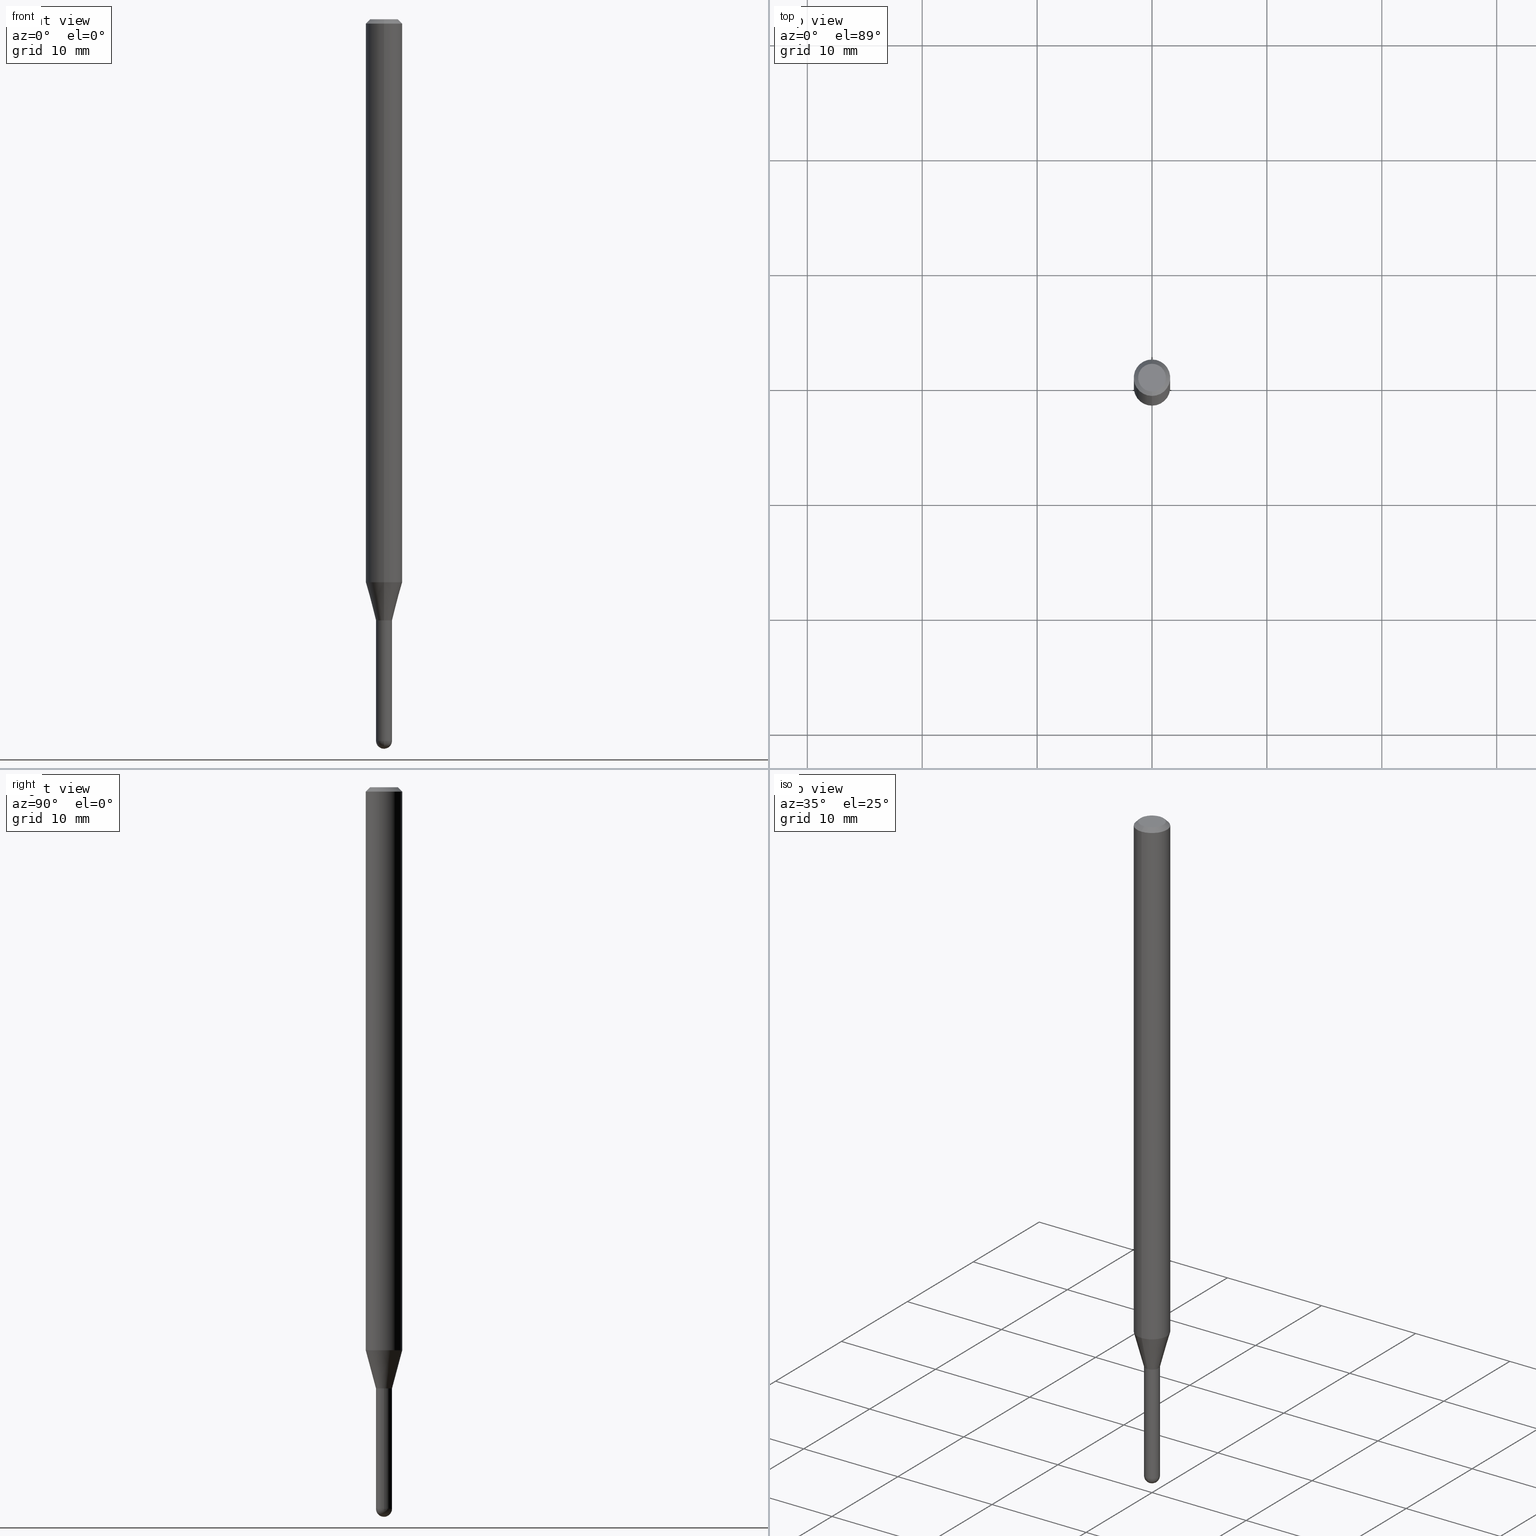
[diagram: canonical four-view strip — front | top / right | iso, engineering-drawing reading convention]
A machine part, canonical four-view strip (front | top / right | iso — engineering-drawing reading convention). The complete STEP part file that produces these views, byte-faithful:
ISO-10303-21;
HEADER;
FILE_DESCRIPTION (( 'STEP AP203' ),
    '1' );
FILE_NAME ('01538.STEP',
    '2024-03-07T19:37:36',
    ( '' ),
    ( '' ),
    'SwSTEP 2.0',
    'SolidWorks 2023',
    '' );
FILE_SCHEMA (( 'CONFIG_CONTROL_DESIGN' ));
ENDSEC;

DATA;
#1 = DIRECTION ( 'NONE',  ( -2.445457103693514043E-29, 3.491498097477213736E-15, 1.000000000000000000 ) ) ;
#2 = ORIENTED_EDGE ( 'NONE', *, *, #450, .F. ) ;
#3 = AXIS2_PLACEMENT_3D ( 'NONE', #75, #376, #194 ) ;
#4 = AXIS2_PLACEMENT_3D ( 'NONE', #282, #13, #350 ) ;
#5 = DIRECTION ( 'NONE',  ( -1.000000000000000000, 7.105427357601001070E-15, -4.926315508542082329E-29 ) ) ;
#6 = DIRECTION ( 'NONE',  ( -1.000000000000000000, 6.982962677686265922E-15, -4.883557194083112901E-29 ) ) ;
#7 = VERTEX_POINT ( 'NONE', #159 ) ;
#8 = CARTESIAN_POINT ( 'NONE',  ( 5.037641633608639187E-29, -7.192486080803059776E-15, -2.060000000000000053 ) ) ;
#9 = EDGE_LOOP ( 'NONE', ( #446, #414 ) ) ;
#10 = CARTESIAN_POINT ( 'NONE',  ( 5.037641633608639748E-29, -7.192486080803061353E-15, -2.060000000000000497 ) ) ;
#11 = AXIS2_PLACEMENT_3D ( 'NONE', #8, #443, #38 ) ;
#12 = CIRCLE ( 'NONE', #507, 0.02750000000000019790 ) ;
#13 = DIRECTION ( 'NONE',  ( -2.445468806185136597E-29, 3.491481338843145583E-15, 1.000000000000000000 ) ) ;
#14 = DIRECTION ( 'NONE',  ( -6.982962677686265922E-15, -1.000000000000000000, 4.370956789862821150E-15 ) ) ;
#15 = ORIENTED_EDGE ( 'NONE', *, *, #471, .T. ) ;
#16 = DIRECTION ( 'NONE',  ( 1.839019923739652775E-15, 0.2588190451025323413, 0.9659258262890650926 ) ) ;
#17 = DIRECTION ( 'NONE',  ( 1.000000000000000000, -6.982962677686279332E-15, 0.000000000000000000 ) ) ;
#18 = LINE ( 'NONE', #53, #440 ) ;
#19 = CIRCLE ( 'NONE', #304, 0.02750000000000019790 ) ;
#20 = CARTESIAN_POINT ( 'NONE',  ( -1.953992523339674261E-16, -0.02750000000000868070, -2.472499999999999254 ) ) ;
#21 = ORIENTED_EDGE ( 'NONE', *, *, #222, .T. ) ;
#22 = VECTOR ( 'NONE', #83, 39.37007874015748143 ) ;
#23 = CC_DESIGN_DATE_AND_TIME_ASSIGNMENT ( #275, #354, ( #70 ) ) ;
#24 = ADVANCED_FACE ( 'NONE', ( #410 ), #270, .T. ) ;
#25 = APPLICATION_PROTOCOL_DEFINITION ( 'international standard', 'config_control_design', 1994, #115 ) ;
#26 = COORDINATED_UNIVERSAL_TIME_OFFSET ( 5, 0, .BEHIND. ) ;
#27 = PERSON_AND_ORGANIZATION ( #303, #50 ) ;
#28 = CYLINDRICAL_SURFACE ( 'NONE', #4, 0.02750000000000000014 ) ;
#29 = DIRECTION ( 'NONE',  ( -2.445457103693514043E-29, 3.491498097477213736E-15, 1.000000000000000000 ) ) ;
#30 = VECTOR ( 'NONE', #408, 39.37007874015748143 ) ;
#31 = CARTESIAN_POINT ( 'NONE',  ( 0.000000000000000000, 0.000000000000000000, 0.000000000000000000 ) ) ;
#32 = CARTESIAN_POINT ( 'NONE',  ( -3.773273898774340269E-16, -0.04749999999999999362, 1.569866360734547804E-16 ) ) ;
#33 = DIRECTION ( 'NONE',  ( -2.445468806185136597E-29, 3.491481338843145583E-15, 1.000000000000000000 ) ) ;
#34 = ORIENTED_EDGE ( 'NONE', *, *, #157, .F. ) ;
#35 = ORIENTED_EDGE ( 'NONE', *, *, #481, .T. ) ;
#36 = DIMENSIONAL_EXPONENTS ( 1.000000000000000000, 0.000000000000000000, 0.000000000000000000, 0.000000000000000000, 0.000000000000000000, 0.000000000000000000, 0.000000000000000000 ) ;
#37 = EDGE_CURVE ( 'NONE', #150, #386, #72, .T. ) ;
#38 = DIRECTION ( 'NONE',  ( -6.982962677686265922E-15, -1.000000000000000000, 0.000000000000000000 ) ) ;
#39 = CARTESIAN_POINT ( 'NONE',  ( 5.037641633608639187E-29, -7.192486080803059776E-15, -2.060000000000000053 ) ) ;
#40 = CIRCLE ( 'NONE', #432, 0.06250000000000000000 ) ;
#41 = DIRECTION ( 'NONE',  ( -7.105427357601001070E-15, -1.000000000000000000, 0.000000000000000000 ) ) ;
#42 = DIRECTION ( 'NONE',  ( -6.982962677686265922E-15, -1.000000000000000000, 0.000000000000000000 ) ) ;
#43 = CYLINDRICAL_SURFACE ( 'NONE', #175, 0.02750000000000019790 ) ;
#44 = ORIENTED_EDGE ( 'NONE', *, *, #379, .F. ) ;
#45 = DIRECTION ( 'NONE',  ( 6.982962677686265922E-15, 1.000000000000000000, 0.000000000000000000 ) ) ;
#46 = DIRECTION ( 'NONE',  ( -2.445457103693513483E-29, 3.491498097477213736E-15, 1.000000000000000000 ) ) ;
#47 = VERTEX_POINT ( 'NONE', #361 ) ;
#48 = AXIS2_PLACEMENT_3D ( 'NONE', #71, #312, #185 ) ;
#49 = CYLINDRICAL_SURFACE ( 'NONE', #170, 0.06250000000000000000 ) ;
#50 = ORGANIZATION ( 'UNSPECIFIED', 'UNSPECIFIED', '' ) ;
#51 = ORIENTED_EDGE ( 'NONE', *, *, #259, .T. ) ;
#52 = LINE ( 'NONE', #207, #158 ) ;
#53 = CARTESIAN_POINT ( 'NONE',  ( 4.364351673553919652E-16, 0.06249999999999995143, -0.01500000000000022669 ) ) ;
#54 = CARTESIAN_POINT ( 'NONE',  ( 1.920314736364227082E-16, 0.02749999999999280798, -2.060000000000000053 ) ) ;
#55 = EDGE_CURVE ( 'NONE', #7, #426, #280, .T. ) ;
#56 = CARTESIAN_POINT ( 'NONE',  ( -4.364351673553916201E-16, -0.06250000000000000000, 2.182186310923258585E-16 ) ) ;
#57 = ADVANCED_FACE ( 'NONE', ( #363 ), #181, .T. ) ;
#58 = CIRCLE ( 'NONE', #69, 0.02750000000000000014 ) ;
#59 = CARTESIAN_POINT ( 'NONE',  ( -0.02750000000000000014, 1.953992523340275521E-16, -1.352707149820099181E-30 ) ) ;
#60 = CARTESIAN_POINT ( 'NONE',  ( -1.920314736363239774E-16, -0.02750000000000748374, -2.059500000000000330 ) ) ;
#61 = ORIENTED_EDGE ( 'NONE', *, *, #487, .T. ) ;
#62 = EDGE_CURVE ( 'NONE', #340, #322, #512, .T. ) ;
#63 = APPROVAL_DATE_TIME ( #260, #130 ) ;
#64 = APPROVAL_STATUS ( 'not_yet_approved' ) ;
#65 = DESIGN_CONTEXT ( 'detailed design', #219, 'design' ) ;
#66 = DIRECTION ( 'NONE',  ( -2.445468806185136597E-29, 3.491481338843145583E-15, 1.000000000000000000 ) ) ;
#67 =( LENGTH_UNIT ( ) NAMED_UNIT ( * ) SI_UNIT ( $, .METRE. ) );
#68 = DIRECTION ( 'NONE',  ( 1.000000000000000000, -6.982962677686279332E-15, 0.000000000000000000 ) ) ;
#69 = AXIS2_PLACEMENT_3D ( 'NONE', #438, #66, #17 ) ;
#70 = SECURITY_CLASSIFICATION ( '', '', #469 ) ;
#71 = CARTESIAN_POINT ( 'NONE',  ( 5.037641633608639748E-29, -7.192486080803061353E-15, -2.060000000000000497 ) ) ;
#72 = LINE ( 'NONE', #191, #347 ) ;
#73 = CARTESIAN_POINT ( 'NONE',  ( 6.046421623292748621E-29, -8.632687610289675147E-15, -2.472499999999999254 ) ) ;
#74 = ORIENTED_EDGE ( 'NONE', *, *, #429, .T. ) ;
#75 = CARTESIAN_POINT ( 'NONE',  ( 5.036418905056793120E-29, -7.190740331754322238E-15, -2.059500000000000330 ) ) ;
#76 = ORIENTED_EDGE ( 'NONE', *, *, #103, .F. ) ;
#77 = FACE_OUTER_BOUND ( 'NONE', #209, .T. ) ;
#78 = AXIS2_PLACEMENT_3D ( 'NONE', #200, #370, #113 ) ;
#79 = APPROVAL_PERSON_ORGANIZATION ( #431, #308, #223 ) ;
#80 = ADVANCED_FACE ( 'NONE', ( #235 ), #382, .T. ) ;
#81 = DIRECTION ( 'NONE',  ( -2.445457103693514043E-29, 3.491498097477213736E-15, 1.000000000000000000 ) ) ;
#82 = ORIENTED_EDGE ( 'NONE', *, *, #506, .F. ) ;
#83 = DIRECTION ( 'NONE',  ( 5.024295867788190974E-15, 0.7071067811865681119, 0.7071067811865270336 ) ) ;
#84 = ORIENTED_EDGE ( 'NONE', *, *, #195, .F. ) ;
#85 = CYLINDRICAL_SURFACE ( 'NONE', #477, 0.06250000000000000000 ) ;
#86 = CARTESIAN_POINT ( 'NONE',  ( 6.044069915997506284E-29, -8.636055388987333140E-15, -2.472500000000000142 ) ) ;
#87 = VERTEX_POINT ( 'NONE', #472 ) ;
#88 = FACE_OUTER_BOUND ( 'NONE', #171, .T. ) ;
#89 = CARTESIAN_POINT ( 'NONE',  ( 4.440892098501101450E-16, 0.06249999999999995143, -0.01500000000000022669 ) ) ;
#90 = DIRECTION ( 'NONE',  ( -6.982962677686265922E-15, -1.000000000000000000, 3.491498097477213736E-15 ) ) ;
#91 = AXIS2_PLACEMENT_3D ( 'NONE', #86, #253, #249 ) ;
#92 = DIRECTION ( 'NONE',  ( -6.982962677686265922E-15, -1.000000000000000000, 0.000000000000000000 ) ) ;
#93 = ORIENTED_EDGE ( 'NONE', *, *, #351, .F. ) ;
#94 = ORIENTED_EDGE ( 'NONE', *, *, #506, .T. ) ;
#95 = DIRECTION ( 'NONE',  ( -6.982962677686265922E-15, -1.000000000000000000, 0.000000000000000000 ) ) ;
#96 = CIRCLE ( 'NONE', #494, 0.02750000000000000014 ) ;
#97 = CIRCLE ( 'NONE', #251, 0.06250000000000000000 ) ;
#98 = ORIENTED_EDGE ( 'NONE', *, *, #471, .F. ) ;
#99 = ADVANCED_FACE ( 'NONE', ( #439 ), #428, .T. ) ;
#100 = LENGTH_MEASURE_WITH_UNIT ( LENGTH_MEASURE( 0.02539999999999999897 ), #67 );
#101 = MECHANICAL_CONTEXT ( 'NONE', #115, 'mechanical' ) ;
#102 = AXIS2_PLACEMENT_3D ( 'NONE', #125, #124, #286 ) ;
#103 = EDGE_CURVE ( 'NONE', #132, #445, #319, .T. ) ;
#104 = DIRECTION ( 'NONE',  ( -6.982962677686265922E-15, -1.000000000000000000, 3.483106191921935554E-15 ) ) ;
#105 = CARTESIAN_POINT ( 'NONE',  ( 0.000000000000000000, 0.000000000000000000, 0.000000000000000000 ) ) ;
#106 = CALENDAR_DATE ( 2024, 7, 3 ) ;
#107 = ORIENTED_EDGE ( 'NONE', *, *, #487, .F. ) ;
#108 = DIRECTION ( 'NONE',  ( 6.982962677686265922E-15, 1.000000000000000000, -3.483106191921935554E-15 ) ) ;
#109 = ORIENTED_EDGE ( 'NONE', *, *, #351, .T. ) ;
#110 = ORIENTED_EDGE ( 'NONE', *, *, #265, .F. ) ;
#111 = CARTESIAN_POINT ( 'NONE',  ( 1.920314736364331113E-16, 0.02749999999999141673, -2.472499999999999254 ) ) ;
#112 = VERTEX_POINT ( 'NONE', #111 ) ;
#113 = DIRECTION ( 'NONE',  ( -6.982962677686265922E-15, -1.000000000000000000, 4.370956789862821150E-15 ) ) ;
#114 = DIRECTION ( 'NONE',  ( -2.445468806185136597E-29, 3.491481338843145583E-15, 1.000000000000000000 ) ) ;
#115 = APPLICATION_CONTEXT ( 'configuration controlled 3d designs of mechanical parts and assemblies' ) ;
#116 = SPHERICAL_SURFACE ( 'NONE', #396, 0.02750000000000009381 ) ;
#117 = ORIENTED_EDGE ( 'NONE', *, *, #157, .T. ) ;
#118 = DIRECTION ( 'NONE',  ( 6.982962677686265922E-15, 1.000000000000000000, -3.483106191921935554E-15 ) ) ;
#119 = AXIS2_PLACEMENT_3D ( 'NONE', #10, #372, #145 ) ;
#120 = APPROVAL_DATE_TIME ( #321, #216 ) ;
#121 = ORIENTED_EDGE ( 'NONE', *, *, #399, .T. ) ;
#122 = ADVANCED_FACE ( 'NONE', ( #447 ), #338, .T. ) ;
#123 = ORIENTED_EDGE ( 'NONE', *, *, #283, .F. ) ;
#124 = DIRECTION ( 'NONE',  ( 2.445457103693513483E-29, -3.491498097477213736E-15, -1.000000000000000000 ) ) ;
#125 = CARTESIAN_POINT ( 'NONE',  ( 3.316907271900976096E-16, 0.04749999999999999362, -1.702759214085240618E-16 ) ) ;
#126 = DIRECTION ( 'NONE',  ( -2.445457103693514043E-29, 3.491498097477213736E-15, 1.000000000000000000 ) ) ;
#127 = CARTESIAN_POINT ( 'NONE',  ( 5.037641633608639748E-29, -7.192486080803061353E-15, -2.060000000000000497 ) ) ;
#128 = ORIENTED_EDGE ( 'NONE', *, *, #259, .F. ) ;
#129 = CIRCLE ( 'NONE', #500, 0.02750000000000000014 ) ;
#130 = APPROVAL ( #349, 'UNSPECIFIED' ) ;
#131 = CC_DESIGN_APPROVAL ( #130, ( #224 ) ) ;
#132 = VERTEX_POINT ( 'NONE', #480 ) ;
#133 = LINE ( 'NONE', #208, #214 ) ;
#134 = ORIENTED_EDGE ( 'NONE', *, *, #385, .T. ) ;
#135 = VECTOR ( 'NONE', #201, 39.37007874015748143 ) ;
#136 = PERSON_AND_ORGANIZATION ( #303, #50 ) ;
#137 = EDGE_CURVE ( 'NONE', #47, #426, #129, .T. ) ;
#138 = PERSON_AND_ORGANIZATION_ROLE ( 'creator' ) ;
#139 = CC_DESIGN_APPROVAL ( #308, ( #406 ) ) ;
#140 = DIRECTION ( 'NONE',  ( -2.445457103693514043E-29, 3.491498097477213736E-15, 1.000000000000000000 ) ) ;
#141 = ADVANCED_FACE ( 'NONE', ( #77 ), #484, .T. ) ;
#142 = ORIENTED_EDGE ( 'NONE', *, *, #222, .F. ) ;
#143 = CARTESIAN_POINT ( 'NONE',  ( 6.046421623292748621E-29, -8.632687610289675147E-15, -2.472499999999999254 ) ) ;
#144 = DIRECTION ( 'NONE',  ( -2.445457103693514043E-29, 3.491498097477213736E-15, 1.000000000000000000 ) ) ;
#145 = DIRECTION ( 'NONE',  ( -6.982962677686265133E-15, -1.000000000000000000, 0.000000000000000000 ) ) ;
#146 = CALENDAR_DATE ( 2024, 7, 3 ) ;
#147 = AXIS2_PLACEMENT_3D ( 'NONE', #239, #413, #45 ) ;
#148 = EDGE_LOOP ( 'NONE', ( #285, #93, #358, #242 ) ) ;
#149 = CIRCLE ( 'NONE', #292, 0.02699999999999999969 ) ;
#150 = VERTEX_POINT ( 'NONE', #394 ) ;
#151 = CARTESIAN_POINT ( 'NONE',  ( 6.044069915997506284E-29, -8.636055388987333140E-15, -2.472500000000000142 ) ) ;
#152 = EDGE_LOOP ( 'NONE', ( #98, #444, #407, #318 ) ) ;
#153 = DIRECTION ( 'NONE',  ( -2.445457103693514043E-29, 3.491498097477213736E-15, 1.000000000000000000 ) ) ;
#154 = DIRECTION ( 'NONE',  ( -2.445457103693514043E-29, 3.491498097477213736E-15, 1.000000000000000000 ) ) ;
#155 = CARTESIAN_POINT ( 'NONE',  ( -4.364351673553912750E-16, -0.06250000000000005551, -0.01499999999999979128 ) ) ;
#156 = ORIENTED_EDGE ( 'NONE', *, *, #424, .F. ) ;
#157 = EDGE_CURVE ( 'NONE', #150, #112, #58, .T. ) ;
#158 = VECTOR ( 'NONE', #16, 39.37007874015748143 ) ;
#159 = CARTESIAN_POINT ( 'NONE',  ( 6.112496161815219763E-29, -8.730387236456691573E-15, -2.500000000000000000 ) ) ;
#160 = AXIS2_PLACEMENT_3D ( 'NONE', #31, #352, #226 ) ;
#161 = EDGE_CURVE ( 'NONE', #356, #317, #364, .T. ) ;
#162 = DIRECTION ( 'NONE',  ( -6.982962677686265922E-15, -1.000000000000000000, 3.491498097477213736E-15 ) ) ;
#163 = CARTESIAN_POINT ( 'NONE',  ( 0.02750000000000000014, -7.384483031653253552E-15, -2.060000000000000053 ) ) ;
#164 = DIRECTION ( 'NONE',  ( -6.982962677686265922E-15, -1.000000000000000000, 3.491498097477213736E-15 ) ) ;
#165 = CARTESIAN_POINT ( 'NONE',  ( 5.037665740741381905E-29, -7.192451558016880271E-15, -2.060000000000000053 ) ) ;
#166 = DIRECTION ( 'NONE',  ( -6.982962677686265922E-15, -1.000000000000000000, 3.491498097477213736E-15 ) ) ;
#167 = ORIENTED_EDGE ( 'NONE', *, *, #268, .F. ) ;
#168 = DIRECTION ( 'NONE',  ( -2.445457103693514043E-29, 3.491498097477213736E-15, 1.000000000000000000 ) ) ;
#169 = AXIS2_PLACEMENT_3D ( 'NONE', #39, #509, #42 ) ;
#170 = AXIS2_PLACEMENT_3D ( 'NONE', #204, #373, #166 ) ;
#171 = EDGE_LOOP ( 'NONE', ( #193, #311, #299, #257 ) ) ;
#172 = VERTEX_POINT ( 'NONE', #310 ) ;
#173 = CARTESIAN_POINT ( 'NONE',  ( -4.287811248607203282E-16, -0.06250000000000005551, -0.01499999999999979128 ) ) ;
#174 = VECTOR ( 'NONE', #184, 39.37007874015748143 ) ;
#175 = AXIS2_PLACEMENT_3D ( 'NONE', #105, #144, #503 ) ;
#176 = CALENDAR_DATE ( 2024, 7, 3 ) ;
#177 = APPROVAL_DATE_TIME ( #508, #308 ) ;
#178 = EDGE_CURVE ( 'NONE', #386, #172, #328, .T. ) ;
#179 = DIRECTION ( 'NONE',  ( 1.000000000000000000, -6.982962677686279332E-15, 0.000000000000000000 ) ) ;
#180 = CARTESIAN_POINT ( 'NONE',  ( 4.440892098500625669E-16, 0.06250000000000000000, -2.182186310923258585E-16 ) ) ;
#181 = CONICAL_SURFACE ( 'NONE', #119, 0.02699999999999999969, 0.7853981633974739252 ) ;
#182 = FACE_OUTER_BOUND ( 'NONE', #294, .T. ) ;
#183 = DIRECTION ( 'NONE',  ( -6.982962677686265922E-15, -1.000000000000000000, 0.000000000000000000 ) ) ;
#184 = DIRECTION ( 'NONE',  ( -2.445457103693514324E-29, 3.491498097477213736E-15, 1.000000000000000000 ) ) ;
#185 = DIRECTION ( 'NONE',  ( -6.982962677686265133E-15, -1.000000000000000000, 0.000000000000000000 ) ) ;
#186 = CARTESIAN_POINT ( 'NONE',  ( 5.037641633608639187E-29, -7.192486080803059776E-15, -2.060000000000000053 ) ) ;
#187 = DIRECTION ( 'NONE',  ( 1.000000000000000000, -6.982962677686266711E-15, 4.876176775795935793E-29 ) ) ;
#188 = ORIENTED_EDGE ( 'NONE', *, *, #178, .F. ) ;
#189 = CIRCLE ( 'NONE', #78, 0.06250000000000000000 ) ;
#190 = AXIS2_PLACEMENT_3D ( 'NONE', #212, #46, #90 ) ;
#191 = CARTESIAN_POINT ( 'NONE',  ( 0.02750000000000000014, -1.920314736363723444E-16, 1.340948613343882413E-30 ) ) ;
#192 = DIRECTION ( 'NONE',  ( -2.445457103693514324E-29, 3.491498097477213736E-15, 1.000000000000000000 ) ) ;
#193 = ORIENTED_EDGE ( 'NONE', *, *, #399, .F. ) ;
#194 = DIRECTION ( 'NONE',  ( -6.982962677686265922E-15, -1.000000000000000000, 0.000000000000000000 ) ) ;
#195 = EDGE_CURVE ( 'NONE', #206, #317, #342, .T. ) ;
#196 = ORIENTED_EDGE ( 'NONE', *, *, #499, .T. ) ;
#197 = CARTESIAN_POINT ( 'NONE',  ( 0.000000000000000000, 0.000000000000000000, 0.000000000000000000 ) ) ;
#198 = CARTESIAN_POINT ( 'NONE',  ( 6.044069915997506284E-29, -8.636055388987333140E-15, -2.472500000000000142 ) ) ;
#199 = CLOSED_SHELL ( 'NONE', ( #205, #229, #421, #211, #369 ) ) ;
#200 = CARTESIAN_POINT ( 'NONE',  ( 4.718211678053647219E-29, -6.736420390502052226E-15, -1.929378221735094545 ) ) ;
#201 = DIRECTION ( 'NONE',  ( -4.851104656540964275E-15, -0.7071067811865500152, -0.7071067811865450192 ) ) ;
#202 = DIRECTION ( 'NONE',  ( -2.445468806185136877E-29, 3.491481338843145188E-15, 1.000000000000000000 ) ) ;
#203 = EDGE_CURVE ( 'NONE', #317, #206, #97, .T. ) ;
#204 = CARTESIAN_POINT ( 'NONE',  ( 0.000000000000000000, 0.000000000000000000, 0.000000000000000000 ) ) ;
#205 = ADVANCED_FACE ( 'NONE', ( #182 ), #473, .T. ) ;
#206 = VERTEX_POINT ( 'NONE', #155 ) ;
#207 = CARTESIAN_POINT ( 'NONE',  ( 1.953992523340792964E-16, 0.02749999999999300573, -2.060000000000000053 ) ) ;
#208 = CARTESIAN_POINT ( 'NONE',  ( -1.920314736363233118E-16, -0.02750000000000739006, -2.060000000000000053 ) ) ;
#209 = EDGE_LOOP ( 'NONE', ( #2, #142, #35, #284 ) ) ;
#210 = EDGE_LOOP ( 'NONE', ( #167, #296 ) ) ;
#211 = ADVANCED_FACE ( 'NONE', ( #324 ), #116, .T. ) ;
#212 = CARTESIAN_POINT ( 'NONE',  ( 5.037641633608639748E-29, -7.192486080803061353E-15, -2.060000000000000497 ) ) ;
#213 = CIRCLE ( 'NONE', #314, 0.04749999999999999362 ) ;
#214 = VECTOR ( 'NONE', #461, 39.37007874015748854 ) ;
#215 = ADVANCED_FACE ( 'NONE', ( #451 ), #367, .F. ) ;
#216 = APPROVAL ( #485, 'UNSPECIFIED' ) ;
#217 = ORIENTED_EDGE ( 'NONE', *, *, #55, .F. ) ;
#218 = PERSON_AND_ORGANIZATION_ROLE ( 'creator' ) ;
#219 = APPLICATION_CONTEXT ( 'configuration controlled 3d designs of mechanical parts and assemblies' ) ;
#220 = AXIS2_PLACEMENT_3D ( 'NONE', #331, #81, #164 ) ;
#221 = CIRCLE ( 'NONE', #433, 0.02750000000000000014 ) ;
#222 = EDGE_CURVE ( 'NONE', #478, #362, #213, .T. ) ;
#223 = APPROVAL_ROLE ( '' ) ;
#224 = PRODUCT_DEFINITION ( 'UNKNOWN', '', #406, #65 ) ;
#225 = PERSON_AND_ORGANIZATION ( #303, #50 ) ;
#226 = DIRECTION ( 'NONE',  ( 1.000000000000000000, 0.000000000000000000, 0.000000000000000000 ) ) ;
#227 = AXIS2_PLACEMENT_3D ( 'NONE', #230, #289, #92 ) ;
#228 = AXIS2_PLACEMENT_3D ( 'NONE', #143, #436, #179 ) ;
#229 = ADVANCED_FACE ( 'NONE', ( #88 ), #247, .T. ) ;
#230 = CARTESIAN_POINT ( 'NONE',  ( 5.037641633608639187E-29, -7.192486080803059776E-15, -2.060000000000000053 ) ) ;
#231 = DIRECTION ( 'NONE',  ( -6.982962677686265922E-15, -1.000000000000000000, 3.483106191921935554E-15 ) ) ;
#232 = EDGE_LOOP ( 'NONE', ( #449, #281, #61, #474 ) ) ;
#233 = CARTESIAN_POINT ( 'NONE',  ( -1.885399922974788009E-16, -0.02700000000000719186, -2.060000000000000497 ) ) ;
#234 = ORIENTED_EDGE ( 'NONE', *, *, #339, .F. ) ;
#235 = FACE_OUTER_BOUND ( 'NONE', #245, .T. ) ;
#236 = APPROVAL_ROLE ( '' ) ;
#237 = AXIS2_PLACEMENT_3D ( 'NONE', #127, #153, #418 ) ;
#238 = EDGE_LOOP ( 'NONE', ( #430, #329, #94, #255, #110 ) ) ;
#239 = CARTESIAN_POINT ( 'NONE',  ( 6.044069915997506284E-29, -8.636055388987333140E-15, -2.472500000000000142 ) ) ;
#240 = CC_DESIGN_PERSON_AND_ORGANIZATION_ASSIGNMENT ( #271, #301, ( #493 ) ) ;
#241 = CIRCLE ( 'NONE', #228, 0.02750000000000000014 ) ;
#242 = ORIENTED_EDGE ( 'NONE', *, *, #339, .T. ) ;
#243 = CARTESIAN_POINT ( 'NONE',  ( 3.668185655540273570E-31, -5.237247146215822995E-17, -0.01500000000000000812 ) ) ;
#244 = EDGE_CURVE ( 'NONE', #322, #445, #457, .T. ) ;
#245 = EDGE_LOOP ( 'NONE', ( #109, #248, #128, #107 ) ) ;
#246 = DIRECTION ( 'NONE',  ( 6.982962677686265922E-15, 1.000000000000000000, 0.000000000000000000 ) ) ;
#247 = SPHERICAL_SURFACE ( 'NONE', #147, 0.02750000000000009381 ) ;
#248 = ORIENTED_EDGE ( 'NONE', *, *, #320, .T. ) ;
#249 = DIRECTION ( 'NONE',  ( 6.982962677686265922E-15, 1.000000000000000000, 0.000000000000000000 ) ) ;
#250 = DIRECTION ( 'NONE',  ( -4.937700262164674260E-15, -0.7071067811865632269, 0.7071067811865319186 ) ) ;
#251 = AXIS2_PLACEMENT_3D ( 'NONE', #267, #29, #231 ) ;
#252 = LOCAL_TIME ( 14, 37, 36.00000000000000000, #266 ) ;
#253 = DIRECTION ( 'NONE',  ( 1.000000000000000000, -6.982962677686265922E-15, 4.883557194083112340E-29 ) ) ;
#254 = EDGE_LOOP ( 'NONE', ( #217, #121, #34, #82 ) ) ;
#255 = ORIENTED_EDGE ( 'NONE', *, *, #37, .T. ) ;
#256 = AXIS2_PLACEMENT_3D ( 'NONE', #243, #483, #118 ) ;
#257 = ORIENTED_EDGE ( 'NONE', *, *, #498, .F. ) ;
#258 = EDGE_CURVE ( 'NONE', #356, #381, #40, .T. ) ;
#259 = EDGE_CURVE ( 'NONE', #381, #356, #189, .T. ) ;
#260 = DATE_AND_TIME ( #106, #305 ) ;
#261 = VECTOR ( 'NONE', #192, 39.37007874015748143 ) ;
#262 = AXIS2_PLACEMENT_3D ( 'NONE', #336, #419, #371 ) ;
#263 = APPROVAL_ROLE ( '' ) ;
#264 = UNCERTAINTY_MEASURE_WITH_UNIT (LENGTH_MEASURE( 1.000000000000000082E-05 ), #392, 'distance_accuracy_value', 'NONE');
#265 = EDGE_CURVE ( 'NONE', #172, #386, #96, .T. ) ;
#266 = COORDINATED_UNIVERSAL_TIME_OFFSET ( 5, 0, .BEHIND. ) ;
#267 = CARTESIAN_POINT ( 'NONE',  ( 3.668185655540273570E-31, -5.237247146215822995E-17, -0.01500000000000000812 ) ) ;
#268 = EDGE_CURVE ( 'NONE', #334, #87, #290, .T. ) ;
#269 = PLANE ( 'NONE',  #190 ) ;
#270 = CONICAL_SURFACE ( 'NONE', #11, 0.02750000000000019790, 0.2617993877991579010 ) ;
#271 = PERSON_AND_ORGANIZATION ( #303, #50 ) ;
#272 = APPROVAL_PERSON_ORGANIZATION ( #405, #216, #236 ) ;
#273 = EDGE_LOOP ( 'NONE', ( #51, #463, #84, #156 ) ) ;
#274 = ORIENTED_EDGE ( 'NONE', *, *, #258, .T. ) ;
#275 = DATE_AND_TIME ( #327, #252 ) ;
#276 = ORIENTED_EDGE ( 'NONE', *, *, #424, .T. ) ;
#277 = CC_DESIGN_PERSON_AND_ORGANIZATION_ASSIGNMENT ( #27, #306, ( #70 ) ) ;
#278 = ORIENTED_EDGE ( 'NONE', *, *, #268, .T. ) ;
#279 = DIRECTION ( 'NONE',  ( 1.000000000000000000, -6.982962677686279332E-15, 0.000000000000000000 ) ) ;
#280 = CIRCLE ( 'NONE', #416, 0.02750000000000009381 ) ;
#281 = ORIENTED_EDGE ( 'NONE', *, *, #379, .T. ) ;
#282 = CARTESIAN_POINT ( 'NONE',  ( 0.000000000000000000, 0.000000000000000000, 0.000000000000000000 ) ) ;
#283 = EDGE_CURVE ( 'NONE', #334, #445, #288, .T. ) ;
#284 = ORIENTED_EDGE ( 'NONE', *, *, #203, .T. ) ;
#285 = ORIENTED_EDGE ( 'NONE', *, *, #62, .F. ) ;
#286 = DIRECTION ( 'NONE',  ( 6.982962677686265922E-15, 1.000000000000000000, -3.491498097477213736E-15 ) ) ;
#287 = DIRECTION ( 'NONE',  ( -6.982962677686266711E-15, -1.000000000000000000, 3.491498097477214525E-15 ) ) ;
#288 = LINE ( 'NONE', #455, #395 ) ;
#289 = DIRECTION ( 'NONE',  ( -2.445457103693514043E-29, 3.491498097477213736E-15, 1.000000000000000000 ) ) ;
#290 = CIRCLE ( 'NONE', #237, 0.02699999999999999969 ) ;
#291 = DIRECTION ( 'NONE',  ( 1.000000000000000000, -6.982962677686279332E-15, 0.000000000000000000 ) ) ;
#292 = AXIS2_PLACEMENT_3D ( 'NONE', #422, #453, #365 ) ;
#293 = DIRECTION ( 'NONE',  ( 2.438088387897960049E-29, -3.491481338843145188E-15, -1.000000000000000000 ) ) ;
#294 = EDGE_LOOP ( 'NONE', ( #479, #74, #188, #441, #117 ) ) ;
#295 = DIRECTION ( 'NONE',  ( -2.445457103693514043E-29, 3.491498097477213736E-15, 1.000000000000000000 ) ) ;
#296 = ORIENTED_EDGE ( 'NONE', *, *, #499, .F. ) ;
#297 = CC_DESIGN_DATE_AND_TIME_ASSIGNMENT ( #307, #344, ( #224 ) ) ;
#298 = LINE ( 'NONE', #173, #135 ) ;
#299 = ORIENTED_EDGE ( 'NONE', *, *, #137, .F. ) ;
#300 = VECTOR ( 'NONE', #464, 39.37007874015748143 ) ;
#301 = PERSON_AND_ORGANIZATION_ROLE ( 'design_owner' ) ;
#302 = PERSON_AND_ORGANIZATION_ROLE ( 'design_supplier' ) ;
#303 = PERSON ( 'UNSPECIFIED', 'UNSPECIFIED', 'UNSPECIFIED', ('UNSPECIFIED'), ('UNSPECIFIED'), ('UNSPECIFIED') ) ;
#304 = AXIS2_PLACEMENT_3D ( 'NONE', #402, #295, #95 ) ;
#305 = LOCAL_TIME ( 14, 37, 36.00000000000000000, #434 ) ;
#306 = PERSON_AND_ORGANIZATION_ROLE ( 'classification_officer' ) ;
#307 = DATE_AND_TIME ( #176, #466 ) ;
#308 = APPROVAL ( #64, 'UNSPECIFIED' ) ;
#309 = APPLICATION_PROTOCOL_DEFINITION ( 'international standard', 'config_control_design', 1994, #219 ) ;
#310 = CARTESIAN_POINT ( 'NONE',  ( -0.02750000000000000014, -7.717170331819249590E-15, -2.060000000000000053 ) ) ;
#311 = ORIENTED_EDGE ( 'NONE', *, *, #55, .T. ) ;
#312 = DIRECTION ( 'NONE',  ( -2.445457103693514043E-29, 3.491498097477213736E-15, 1.000000000000000000 ) ) ;
#313 = CLOSED_SHELL ( 'NONE', ( #504, #57, #122, #411, #80, #24, #502, #141, #388, #435, #99, #215 ) ) ;
#314 = AXIS2_PLACEMENT_3D ( 'NONE', #488, #126, #287 ) ;
#315 = SHAPE_DEFINITION_REPRESENTATION ( #390, #496 ) ;
#316 = CIRCLE ( 'NONE', #262, 0.04749999999999999362 ) ;
#317 = VERTEX_POINT ( 'NONE', #89 ) ;
#318 = ORIENTED_EDGE ( 'NONE', *, *, #481, .F. ) ;
#319 = LINE ( 'NONE', #357, #261 ) ;
#320 = EDGE_CURVE ( 'NONE', #340, #356, #52, .T. ) ;
#321 = DATE_AND_TIME ( #146, #343 ) ;
#322 = VERTEX_POINT ( 'NONE', #335 ) ;
#323 = CARTESIAN_POINT ( 'NONE',  ( 3.668185655540273570E-31, -5.237247146215822995E-17, -0.01500000000000000812 ) ) ;
#324 = FACE_OUTER_BOUND ( 'NONE', #254, .T. ) ;
#325 = EDGE_LOOP ( 'NONE', ( #44, #482, #497, #76 ) ) ;
#326 = ORIENTED_EDGE ( 'NONE', *, *, #385, .F. ) ;
#327 = CALENDAR_DATE ( 2024, 7, 3 ) ;
#328 = CIRCLE ( 'NONE', #366, 0.02750000000000000014 ) ;
#329 = ORIENTED_EDGE ( 'NONE', *, *, #137, .T. ) ;
#330 = FACE_OUTER_BOUND ( 'NONE', #341, .T. ) ;
#331 = CARTESIAN_POINT ( 'NONE',  ( 0.000000000000000000, 0.000000000000000000, 0.000000000000000000 ) ) ;
#332 = DIRECTION ( 'NONE',  ( -2.445468806185136597E-29, 3.491481338843145583E-15, 1.000000000000000000 ) ) ;
#333 = CARTESIAN_POINT ( 'NONE',  ( 3.197442310920946221E-16, 0.02749999999999300573, -2.060000000000000053 ) ) ;
#334 = VERTEX_POINT ( 'NONE', #233 ) ;
#335 = CARTESIAN_POINT ( 'NONE',  ( 1.953992523340786308E-16, 0.02749999999999291206, -2.059500000000000330 ) ) ;
#336 = CARTESIAN_POINT ( 'NONE',  ( 2.166558481710350976E-46, -3.093300964281754331E-32, -8.859523556712869676E-18 ) ) ;
#337 = FACE_OUTER_BOUND ( 'NONE', #9, .T. ) ;
#338 = CONICAL_SURFACE ( 'NONE', #476, 0.06250000000000000000, 0.7853981633974483900 ) ;
#339 = EDGE_CURVE ( 'NONE', #445, #322, #19, .T. ) ;
#340 = VERTEX_POINT ( 'NONE', #333 ) ;
#341 = EDGE_LOOP ( 'NONE', ( #21, #15 ) ) ;
#342 = CIRCLE ( 'NONE', #404, 0.06250000000000000000 ) ;
#343 = LOCAL_TIME ( 14, 37, 36.00000000000000000, #412 ) ;
#344 = DATE_TIME_ROLE ( 'creation_date' ) ;
#345 = PERSON_AND_ORGANIZATION ( #303, #50 ) ;
#346 = DIRECTION ( 'NONE',  ( -2.445468806185136597E-29, 3.491481338843145583E-15, 1.000000000000000000 ) ) ;
#347 = VECTOR ( 'NONE', #202, 39.37007874015748143 ) ;
#348 = CC_DESIGN_PERSON_AND_ORGANIZATION_ASSIGNMENT ( #136, #302, ( #406 ) ) ;
#349 = APPROVAL_STATUS ( 'not_yet_approved' ) ;
#350 = DIRECTION ( 'NONE',  ( 1.000000000000000000, -6.982962677686266711E-15, 4.876176775795935793E-29 ) ) ;
#351 = EDGE_CURVE ( 'NONE', #132, #340, #465, .T. ) ;
#352 = DIRECTION ( 'NONE',  ( 0.000000000000000000, 0.000000000000000000, 1.000000000000000000 ) ) ;
#353 = CARTESIAN_POINT ( 'NONE',  ( -4.364351673553446829E-16, -0.06250000000000677236, -1.929378221735094323 ) ) ;
#354 = DATE_TIME_ROLE ( 'classification_date' ) ;
#355 = CARTESIAN_POINT ( 'NONE',  ( 1.918465386552773872E-16, 0.02699999999999280753, -2.060000000000000497 ) ) ;
#356 = VERTEX_POINT ( 'NONE', #398 ) ;
#357 = CARTESIAN_POINT ( 'NONE',  ( -1.920314736363737003E-16, -0.02750000000000019790, 9.601619768062406356E-17 ) ) ;
#358 = ORIENTED_EDGE ( 'NONE', *, *, #103, .T. ) ;
#359 = ORIENTED_EDGE ( 'NONE', *, *, #244, .F. ) ;
#360 = DIRECTION ( 'NONE',  ( 1.000000000000000000, -6.982962677686279332E-15, 0.000000000000000000 ) ) ;
#361 = CARTESIAN_POINT ( 'NONE',  ( -0.02750000000000000014, -7.717170331819249590E-15, -2.472499999999999254 ) ) ;
#362 = VERTEX_POINT ( 'NONE', #32 ) ;
#363 = FACE_OUTER_BOUND ( 'NONE', #403, .T. ) ;
#364 = LINE ( 'NONE', #180, #174 ) ;
#365 = DIRECTION ( 'NONE',  ( -6.982962677686265133E-15, -1.000000000000000000, 0.000000000000000000 ) ) ;
#366 = AXIS2_PLACEMENT_3D ( 'NONE', #437, #346, #68 ) ;
#367 = CYLINDRICAL_SURFACE ( 'NONE', #220, 0.02750000000000019790 ) ;
#368 = AXIS2_PLACEMENT_3D ( 'NONE', #54, #293, #425 ) ;
#369 = ADVANCED_FACE ( 'NONE', ( #393 ), #28, .T. ) ;
#370 = DIRECTION ( 'NONE',  ( -2.445457103693514043E-29, 3.491498097477213736E-15, 1.000000000000000000 ) ) ;
#371 = DIRECTION ( 'NONE',  ( -6.982962677686266711E-15, -1.000000000000000000, 3.491498097477214525E-15 ) ) ;
#372 = DIRECTION ( 'NONE',  ( -2.445457103693514043E-29, 3.491498097477213736E-15, 1.000000000000000000 ) ) ;
#373 = DIRECTION ( 'NONE',  ( -2.445457103693514043E-29, 3.491498097477213736E-15, 1.000000000000000000 ) ) ;
#374 = LINE ( 'NONE', #56, #495 ) ;
#375 = ORIENTED_EDGE ( 'NONE', *, *, #161, .F. ) ;
#376 = DIRECTION ( 'NONE',  ( -2.445457103693514043E-29, 3.491498097477213736E-15, 1.000000000000000000 ) ) ;
#377 = CARTESIAN_POINT ( 'NONE',  ( 6.046421623292748621E-29, -8.632687610289675147E-15, -2.472499999999999254 ) ) ;
#378 = CC_DESIGN_SECURITY_CLASSIFICATION ( #70, ( #406 ) ) ;
#379 = EDGE_CURVE ( 'NONE', #340, #132, #12, .T. ) ;
#380 = DIRECTION ( 'NONE',  ( -2.445457103693514324E-29, 3.491498097477213736E-15, 1.000000000000000000 ) ) ;
#381 = VERTEX_POINT ( 'NONE', #353 ) ;
#382 = CONICAL_SURFACE ( 'NONE', #169, 0.02750000000000019790, 0.2617993877991579010 ) ;
#383 = LOCAL_TIME ( 14, 37, 36.00000000000000000, #26 ) ;
#384 = ORIENTED_EDGE ( 'NONE', *, *, #203, .F. ) ;
#385 = EDGE_CURVE ( 'NONE', #87, #322, #510, .T. ) ;
#386 = VERTEX_POINT ( 'NONE', #163 ) ;
#387 = COORDINATED_UNIVERSAL_TIME_OFFSET ( 5, 0, .BEHIND. ) ;
#388 = ADVANCED_FACE ( 'NONE', ( #330 ), #486, .F. ) ;
#389 = CALENDAR_DATE ( 2024, 7, 3 ) ;
#390 = PRODUCT_DEFINITION_SHAPE ( 'NONE', 'NONE',  #224 ) ;
#391 = CC_DESIGN_PERSON_AND_ORGANIZATION_ASSIGNMENT ( #345, #138, ( #406 ) ) ;
#392 =( CONVERSION_BASED_UNIT ( 'INCH', #100 ) LENGTH_UNIT ( ) NAMED_UNIT ( #36 ) );
#393 = FACE_OUTER_BOUND ( 'NONE', #238, .T. ) ;
#394 = CARTESIAN_POINT ( 'NONE',  ( 0.02750000000000000014, -8.104601057789650990E-15, -2.472499999999999254 ) ) ;
#395 = VECTOR ( 'NONE', #250, 39.37007874015748143 ) ;
#396 = AXIS2_PLACEMENT_3D ( 'NONE', #198, #6, #246 ) ;
#397 =( NAMED_UNIT ( * ) SI_UNIT ( $, .STERADIAN. ) SOLID_ANGLE_UNIT ( ) );
#398 = CARTESIAN_POINT ( 'NONE',  ( 4.440892098501095534E-16, 0.06249999999999324846, -1.929378221735094767 ) ) ;
#399 = EDGE_CURVE ( 'NONE', #7, #112, #459, .T. ) ;
#400 = CARTESIAN_POINT ( 'NONE',  ( 0.000000000000000000, 0.000000000000000000, 0.000000000000000000 ) ) ;
#401 = EDGE_LOOP ( 'NONE', ( #326, #196, #452, #359 ) ) ;
#402 = CARTESIAN_POINT ( 'NONE',  ( 5.036418905056793120E-29, -7.190740331754322238E-15, -2.059500000000000330 ) ) ;
#403 = EDGE_LOOP ( 'NONE', ( #278, #134, #234, #123 ) ) ;
#404 = AXIS2_PLACEMENT_3D ( 'NONE', #511, #140, #104 ) ;
#405 = PERSON_AND_ORGANIZATION ( #303, #50 ) ;
#406 = PRODUCT_DEFINITION_FORMATION_WITH_SPECIFIED_SOURCE ( 'ANY', '', #493, .NOT_KNOWN. ) ;
#407 = ORIENTED_EDGE ( 'NONE', *, *, #195, .T. ) ;
#408 = DIRECTION ( 'NONE',  ( -2.445457103693514324E-29, 3.491498097477213736E-15, 1.000000000000000000 ) ) ;
#409 = FACE_OUTER_BOUND ( 'NONE', #325, .T. ) ;
#410 = FACE_OUTER_BOUND ( 'NONE', #232, .T. ) ;
#411 = ADVANCED_FACE ( 'NONE', ( #415 ), #49, .T. ) ;
#412 = COORDINATED_UNIVERSAL_TIME_OFFSET ( 5, 0, .BEHIND. ) ;
#413 = DIRECTION ( 'NONE',  ( -1.000000000000000000, 6.982962677686265922E-15, -4.883557194083112901E-29 ) ) ;
#414 = ORIENTED_EDGE ( 'NONE', *, *, #265, .T. ) ;
#415 = FACE_OUTER_BOUND ( 'NONE', #273, .T. ) ;
#416 = AXIS2_PLACEMENT_3D ( 'NONE', #151, #5, #41 ) ;
#417 = CC_DESIGN_APPROVAL ( #216, ( #70 ) ) ;
#418 = DIRECTION ( 'NONE',  ( -6.982962677686265133E-15, -1.000000000000000000, 0.000000000000000000 ) ) ;
#419 = DIRECTION ( 'NONE',  ( -2.445457103693514043E-29, 3.491498097477213736E-15, 1.000000000000000000 ) ) ;
#420 = PLANE ( 'NONE',  #368 ) ;
#421 = ADVANCED_FACE ( 'NONE', ( #337 ), #420, .F. ) ;
#422 = CARTESIAN_POINT ( 'NONE',  ( 5.037641633608639748E-29, -7.192486080803061353E-15, -2.060000000000000497 ) ) ;
#423 = MANIFOLD_SOLID_BREP ( 'Body-Move/Copy2[1]', #199 ) ;
#424 = EDGE_CURVE ( 'NONE', #381, #206, #374, .T. ) ;
#425 = DIRECTION ( 'NONE',  ( -1.000000000000000000, 6.982962677686265922E-15, -4.876176775795935793E-29 ) ) ;
#426 = VERTEX_POINT ( 'NONE', #20 ) ;
#427 = MANIFOLD_SOLID_BREP ( 'Body-Move/Copy2[2]', #313 ) ;
#428 = CONICAL_SURFACE ( 'NONE', #48, 0.02699999999999999969, 0.7853981633974739252 ) ;
#429 = EDGE_CURVE ( 'NONE', #47, #172, #462, .T. ) ;
#430 = ORIENTED_EDGE ( 'NONE', *, *, #429, .F. ) ;
#431 = PERSON_AND_ORGANIZATION ( #303, #50 ) ;
#432 = AXIS2_PLACEMENT_3D ( 'NONE', #489, #168, #14 ) ;
#433 = AXIS2_PLACEMENT_3D ( 'NONE', #377, #492, #291 ) ;
#434 = COORDINATED_UNIVERSAL_TIME_OFFSET ( 5, 0, .BEHIND. ) ;
#435 = ADVANCED_FACE ( 'NONE', ( #454 ), #269, .F. ) ;
#436 = DIRECTION ( 'NONE',  ( -2.445468806185136597E-29, 3.491481338843145583E-15, 1.000000000000000000 ) ) ;
#437 = CARTESIAN_POINT ( 'NONE',  ( 5.037665740741381905E-29, -7.192451558016880271E-15, -2.060000000000000053 ) ) ;
#438 = CARTESIAN_POINT ( 'NONE',  ( 6.046421623292748621E-29, -8.632687610289675147E-15, -2.472499999999999254 ) ) ;
#439 = FACE_OUTER_BOUND ( 'NONE', #401, .T. ) ;
#440 = VECTOR ( 'NONE', #460, 39.37007874015748143 ) ;
#441 = ORIENTED_EDGE ( 'NONE', *, *, #37, .F. ) ;
#442 = CARTESIAN_POINT ( 'NONE',  ( 1.953992523340289326E-16, 0.02750000000000019790, -9.601619768062406356E-17 ) ) ;
#443 = DIRECTION ( 'NONE',  ( -2.445457103693514043E-29, 3.491498097477213736E-15, 1.000000000000000000 ) ) ;
#444 = ORIENTED_EDGE ( 'NONE', *, *, #450, .T. ) ;
#445 = VERTEX_POINT ( 'NONE', #60 ) ;
#446 = ORIENTED_EDGE ( 'NONE', *, *, #178, .T. ) ;
#447 = FACE_OUTER_BOUND ( 'NONE', #152, .T. ) ;
#448 =( GEOMETRIC_REPRESENTATION_CONTEXT ( 3 ) GLOBAL_UNCERTAINTY_ASSIGNED_CONTEXT ( ( #264 ) ) GLOBAL_UNIT_ASSIGNED_CONTEXT ( ( #392, #467, #397 ) ) REPRESENTATION_CONTEXT ( 'NONE', 'WORKASPACE' ) );
#449 = ORIENTED_EDGE ( 'NONE', *, *, #320, .F. ) ;
#450 = EDGE_CURVE ( 'NONE', #362, #206, #298, .T. ) ;
#451 = FACE_OUTER_BOUND ( 'NONE', #148, .T. ) ;
#452 = ORIENTED_EDGE ( 'NONE', *, *, #283, .T. ) ;
#453 = DIRECTION ( 'NONE',  ( -2.445457103693514043E-29, 3.491498097477213736E-15, 1.000000000000000000 ) ) ;
#454 = FACE_OUTER_BOUND ( 'NONE', #210, .T. ) ;
#455 = CARTESIAN_POINT ( 'NONE',  ( -1.885399922974788009E-16, -0.02700000000000719186, -2.060000000000000497 ) ) ;
#456 = PRODUCT_RELATED_PRODUCT_CATEGORY ( 'detail', '', ( #493 ) ) ;
#457 = CIRCLE ( 'NONE', #3, 0.02750000000000019790 ) ;
#458 = EDGE_LOOP ( 'NONE', ( #375, #274, #276, #384 ) ) ;
#459 = CIRCLE ( 'NONE', #91, 0.02750000000000009381 ) ;
#460 = DIRECTION ( 'NONE',  ( 4.937700262164548042E-15, 0.7071067811865451302, -0.7071067811865499042 ) ) ;
#461 = DIRECTION ( 'NONE',  ( -1.807323732225381810E-15, -0.2588190451025255689, 0.9659258262890669799 ) ) ;
#462 = LINE ( 'NONE', #59, #300 ) ;
#463 = ORIENTED_EDGE ( 'NONE', *, *, #161, .T. ) ;
#464 = DIRECTION ( 'NONE',  ( -2.445468806185136877E-29, 3.491481338843145188E-15, 1.000000000000000000 ) ) ;
#465 = CIRCLE ( 'NONE', #227, 0.02750000000000019790 ) ;
#466 = LOCAL_TIME ( 14, 37, 36.00000000000000000, #387 ) ;
#467 =( NAMED_UNIT ( * ) PLANE_ANGLE_UNIT ( ) SI_UNIT ( $, .RADIAN. ) );
#468 = CC_DESIGN_PERSON_AND_ORGANIZATION_ASSIGNMENT ( #505, #218, ( #224 ) ) ;
#469 = SECURITY_CLASSIFICATION_LEVEL ( 'unclassified' ) ;
#470 = AXIS2_PLACEMENT_3D ( 'NONE', #400, #33, #187 ) ;
#471 = EDGE_CURVE ( 'NONE', #362, #478, #316, .T. ) ;
#472 = CARTESIAN_POINT ( 'NONE',  ( 1.936228954946783541E-16, 0.02699999999999280753, -2.060000000000000497 ) ) ;
#473 = CYLINDRICAL_SURFACE ( 'NONE', #470, 0.02750000000000000014 ) ;
#474 = ORIENTED_EDGE ( 'NONE', *, *, #258, .F. ) ;
#475 = DIRECTION ( 'NONE',  ( 2.445457103693514043E-29, -3.491498097477213736E-15, -1.000000000000000000 ) ) ;
#476 = AXIS2_PLACEMENT_3D ( 'NONE', #323, #475, #108 ) ;
#477 = AXIS2_PLACEMENT_3D ( 'NONE', #197, #154, #162 ) ;
#478 = VERTEX_POINT ( 'NONE', #490 ) ;
#479 = ORIENTED_EDGE ( 'NONE', *, *, #498, .T. ) ;
#480 = CARTESIAN_POINT ( 'NONE',  ( -1.920314736363233118E-16, -0.02750000000000739006, -2.060000000000000053 ) ) ;
#481 = EDGE_CURVE ( 'NONE', #478, #317, #18, .T. ) ;
#482 = ORIENTED_EDGE ( 'NONE', *, *, #62, .T. ) ;
#483 = DIRECTION ( 'NONE',  ( 2.445457103693514043E-29, -3.491498097477213736E-15, -1.000000000000000000 ) ) ;
#484 = CONICAL_SURFACE ( 'NONE', #256, 0.06250000000000000000, 0.7853981633974483900 ) ;
#485 = APPROVAL_STATUS ( 'not_yet_approved' ) ;
#486 = PLANE ( 'NONE',  #102 ) ;
#487 = EDGE_CURVE ( 'NONE', #132, #381, #133, .T. ) ;
#488 = CARTESIAN_POINT ( 'NONE',  ( 2.166558481710350976E-46, -3.093300964281754331E-32, -8.859523556712869676E-18 ) ) ;
#489 = CARTESIAN_POINT ( 'NONE',  ( 4.718211678053647219E-29, -6.736420390502052226E-15, -1.929378221735094545 ) ) ;
#490 = CARTESIAN_POINT ( 'NONE',  ( 3.840629472727447874E-16, 0.04749999999999999362, -1.747056831868805383E-16 ) ) ;
#491 = FACE_OUTER_BOUND ( 'NONE', #458, .T. ) ;
#492 = DIRECTION ( 'NONE',  ( -2.445468806185136597E-29, 3.491481338843145583E-15, 1.000000000000000000 ) ) ;
#493 = PRODUCT ( '01538', '01538', '', ( #101 ) ) ;
#494 = AXIS2_PLACEMENT_3D ( 'NONE', #165, #332, #360 ) ;
#495 = VECTOR ( 'NONE', #380, 39.37007874015748143 ) ;
#497 = ORIENTED_EDGE ( 'NONE', *, *, #244, .T. ) ;
#496 = ADVANCED_BREP_SHAPE_REPRESENTATION ( '01538', ( #423, #427, #160 ), #448 ) ;
#498 = EDGE_CURVE ( 'NONE', #112, #47, #221, .T. ) ;
#499 = EDGE_CURVE ( 'NONE', #87, #334, #149, .T. ) ;
#500 = AXIS2_PLACEMENT_3D ( 'NONE', #73, #114, #279 ) ;
#501 = APPROVAL_PERSON_ORGANIZATION ( #225, #130, #263 ) ;
#502 = ADVANCED_FACE ( 'NONE', ( #491 ), #85, .T. ) ;
#503 = DIRECTION ( 'NONE',  ( -6.982962677686265922E-15, -1.000000000000000000, 3.491498097477213736E-15 ) ) ;
#504 = ADVANCED_FACE ( 'NONE', ( #409 ), #43, .F. ) ;
#505 = PERSON_AND_ORGANIZATION ( #303, #50 ) ;
#506 = EDGE_CURVE ( 'NONE', #426, #150, #241, .T. ) ;
#507 = AXIS2_PLACEMENT_3D ( 'NONE', #186, #1, #183 ) ;
#508 = DATE_AND_TIME ( #389, #383 ) ;
#509 = DIRECTION ( 'NONE',  ( -2.445457103693514043E-29, 3.491498097477213736E-15, 1.000000000000000000 ) ) ;
#510 = LINE ( 'NONE', #355, #22 ) ;
#511 = CARTESIAN_POINT ( 'NONE',  ( 3.668185655540273570E-31, -5.237247146215822995E-17, -0.01500000000000000812 ) ) ;
#512 = LINE ( 'NONE', #442, #30 ) ;
ENDSEC;
END-ISO-10303-21;
